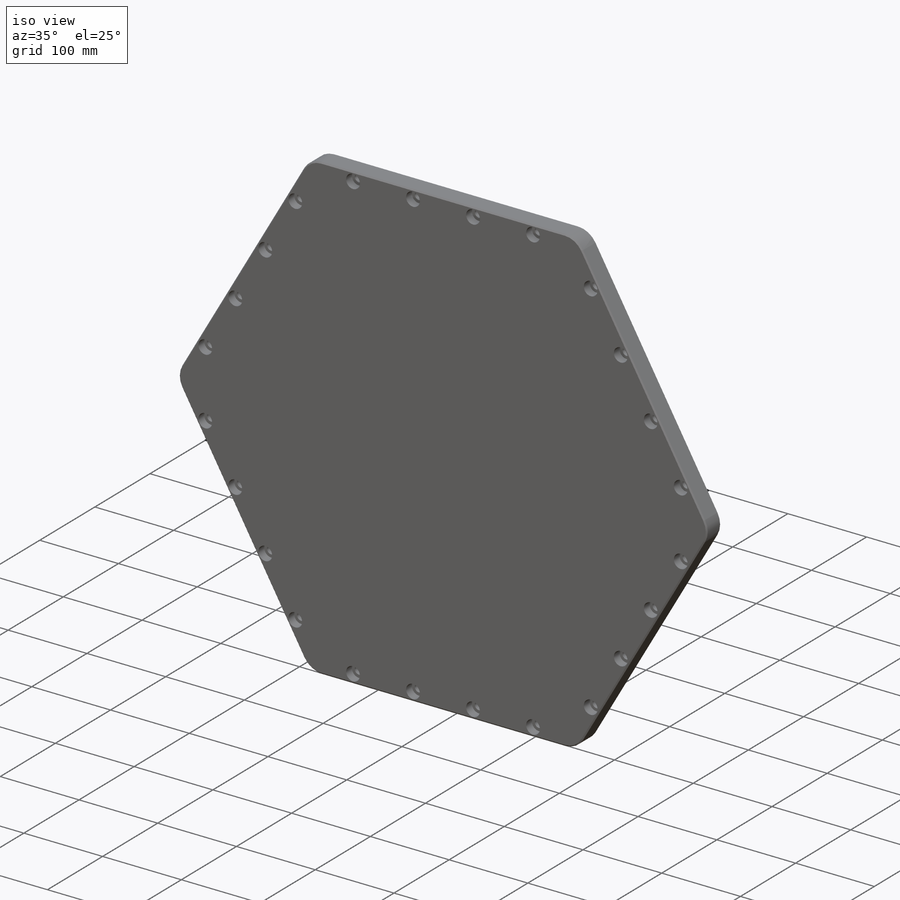
[diagram: iso view]
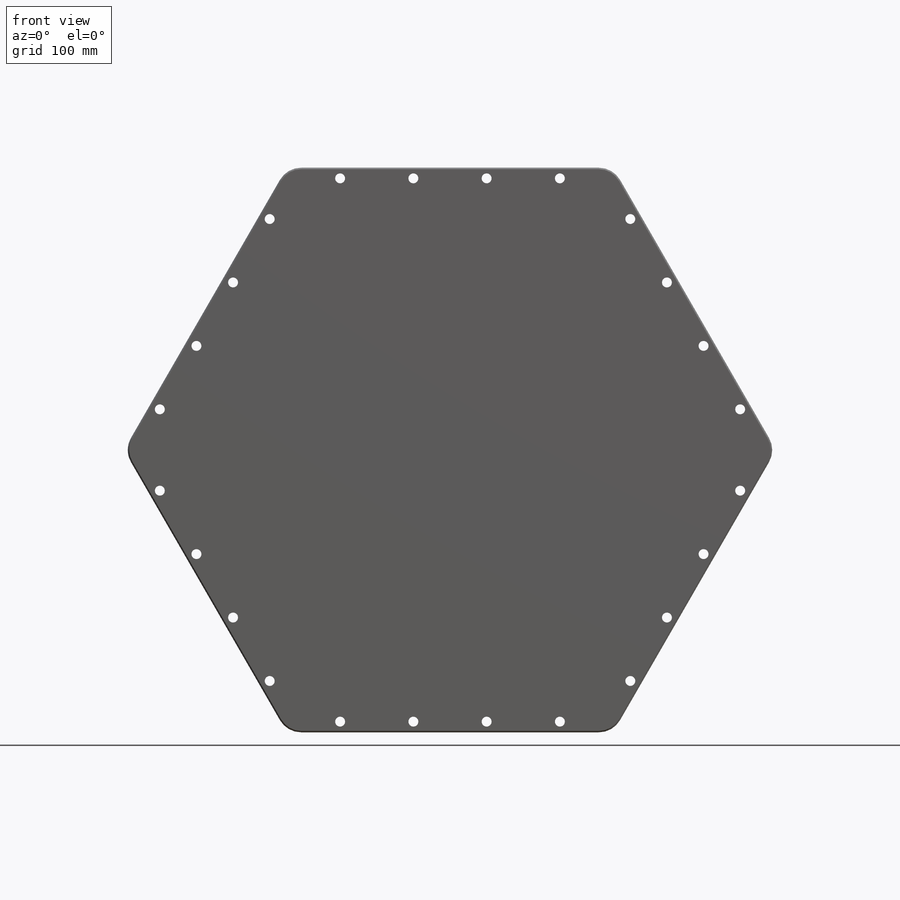
[diagram: front view]
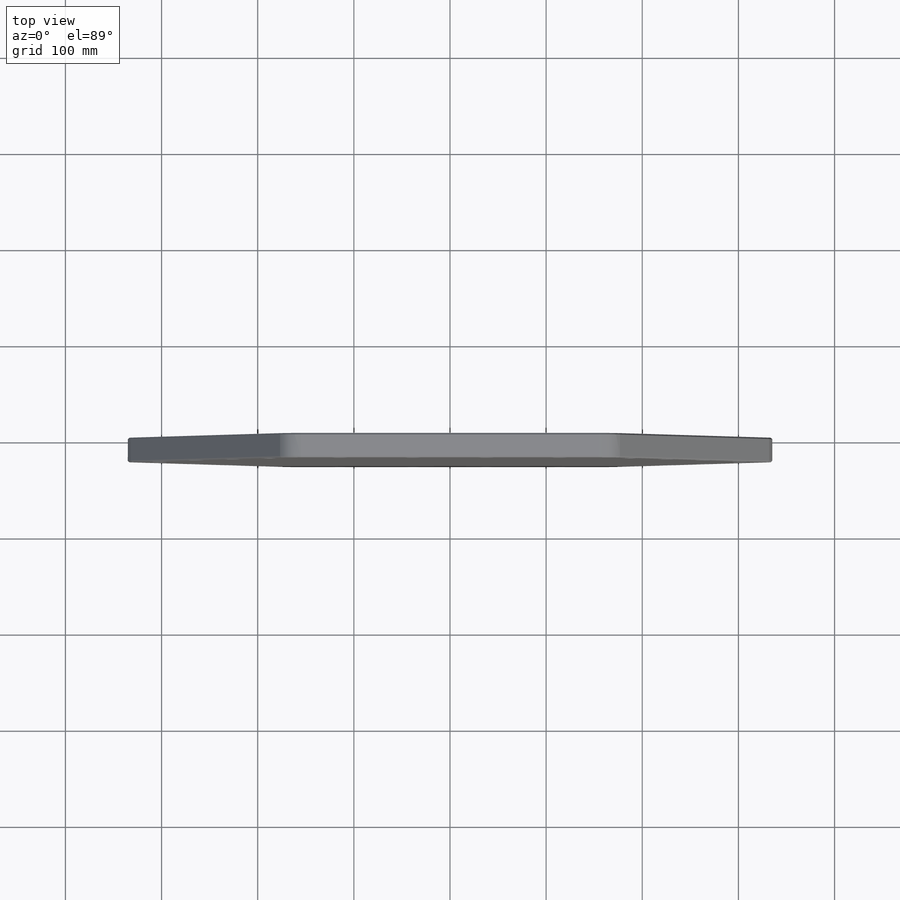
[diagram: top view]
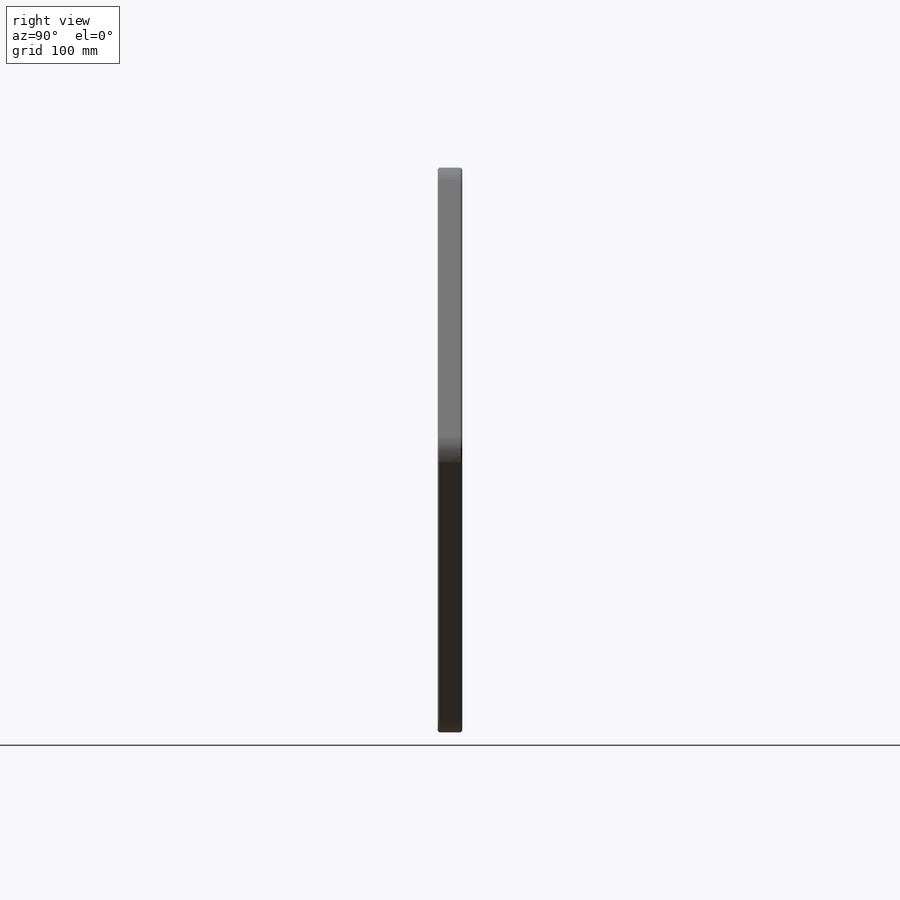
[diagram: right view]
SOLIDWORKS PART (.sldprt)
format: sldprt  version: not decoded by parser v0  size: 520,704 bytes
history: native  units: mm
features: sketch x3, material x1, extrude x1, fillet x1, chamfer x1, hole x1, pattern_circular x1 (+14 scaffold rows collapsed)
feature tree (23):
  scaffold x14  (default folders/planes/origin — collapsed)
  material  "6061-T6 Al"
  sketch  "Sketch1"  dims[c1.D1=812.8mm c1.D2=50.8mm c2.D1=587.375mm]
  extrude  "Extrude1"  Depth=25.4mm
  fillet  "Fillet1"  Radius=25.4mm
  chamfer  "Chamfer1"  Distance=1.524mm Angle=45deg
  hole  "CBORE for 3/8 Socket Head Cap Screw1"  Diameter=10.31748mm Depth=25.4mm
  sketch  "Sketch3"  dims[D1=565.15mm D2=76.2mm]
  sketch  "Sketch2"  dims[hole-wizard template sketch: 43 standard entries collapsed; hole parameters kept: c12.C'Bore Dia.=17.4752mm c12.C'Bore Depth=10.668mm c12.Far C'Sink Dia.=11.684mm c12.D6=~2.963249mm c12.Far C'Sink Angle=82.0deg]
  pattern_circular  "CirPattern1"  Count=6 Angle=360deg
decode coverage: 8 of 8 modeling features carry decoded parameters
note: ~ marks probable driven/reference dimensions
note: suppression state not decoded; provenance and decode notes live in map.json
